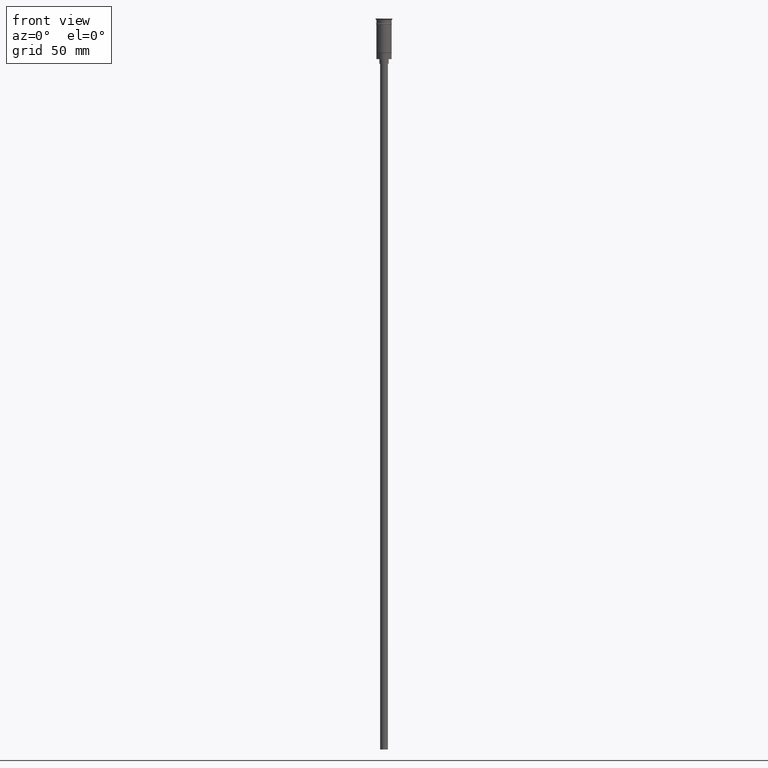
[diagram: clean part render]
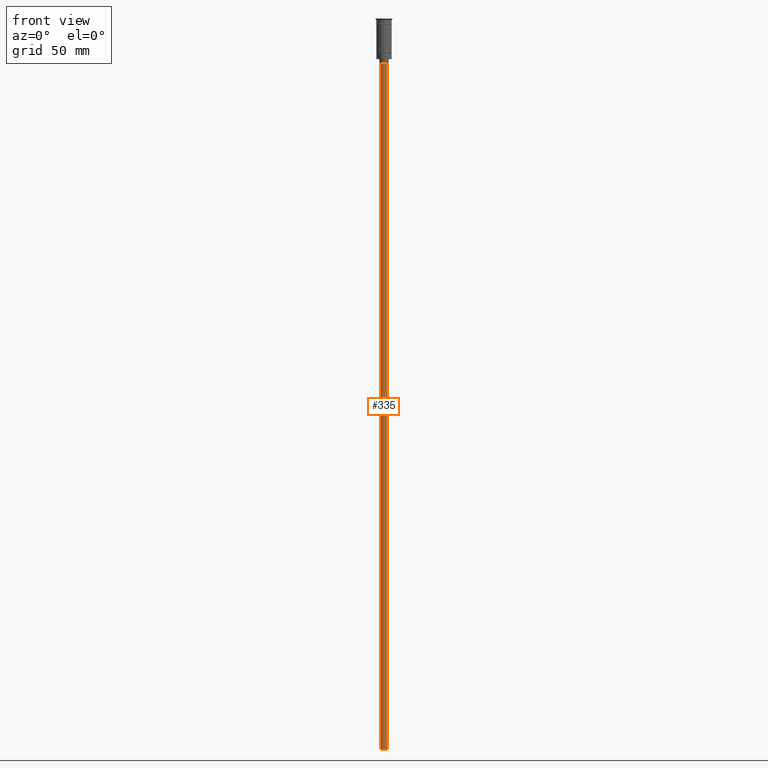
[diagram: same view with one face highlighted and labeled with its STEP entity id]
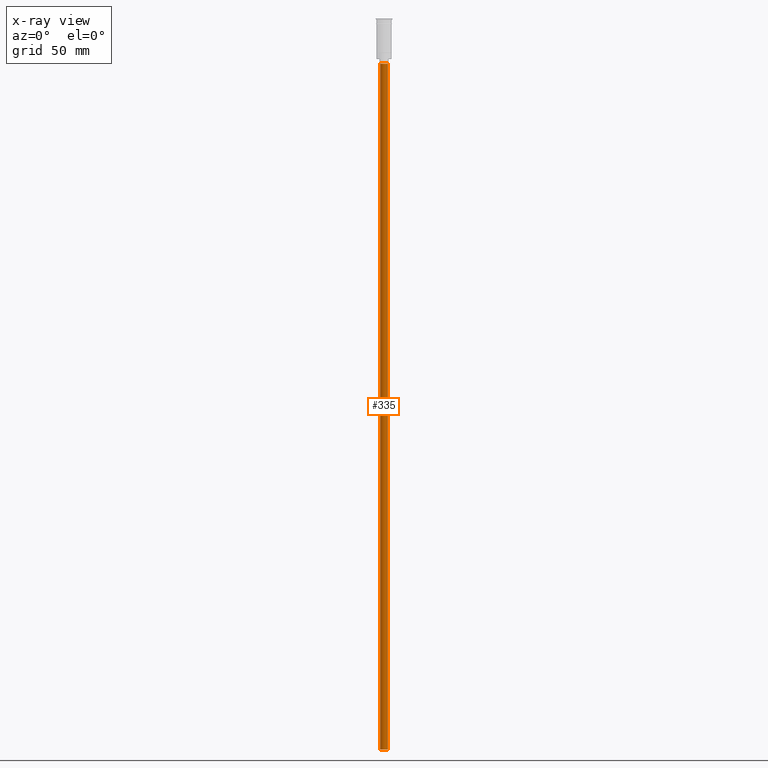
[diagram: x-ray of the same camera — body ghosted, the highlighted face saturated]
A machine part, front view. The second image highlights one B-rep face of the part: STEP entity #335.
The next image is the same camera in x-ray: the body ghosted, the highlighted face saturated — about 0% of this face is hidden behind the body in this view.
In plain terms, the highlighted cylindrical surface (edge-blend (fillet) strip) has radius 2.5 mm, axis along (-0, -0, 1).
Its self-contained STEP definition (entity closure, byte-faithful):
#17 = EDGE_CURVE ( 'NONE', #1533, #547, #1561, .T. ) ;
#209 = AXIS2_PLACEMENT_3D ( 'NONE', #705, #1601, #1447 ) ;
#266 = VERTEX_POINT ( 'NONE', #951 ) ;
#320 = CARTESIAN_POINT ( 'NONE',  ( 0.000000000000000000, 0.000000000000000000, -476.5000000000000568 ) ) ;
#335 = ADVANCED_FACE ( 'NONE', ( #944 ), #581, .T. ) ;
#336 = VECTOR ( 'NONE', #1487, 1000.000000000000000 ) ;
#395 = CARTESIAN_POINT ( 'NONE',  ( 2.500000000000000000, 0.000000000000000000, -476.5000000000000568 ) ) ;
#439 = CARTESIAN_POINT ( 'NONE',  ( 2.500000000000000000, 0.000000000000000000, -476.5000000000000568 ) ) ;
#547 = VERTEX_POINT ( 'NONE', #1192 ) ;
#581 = CYLINDRICAL_SURFACE ( 'NONE', #209, 2.500000000000000000 ) ;
#611 = VECTOR ( 'NONE', #617, 1000.000000000000000 ) ;
#617 = DIRECTION ( 'NONE',  ( -0.000000000000000000, -0.000000000000000000, 1.000000000000000000 ) ) ;
#673 = EDGE_CURVE ( 'NONE', #547, #952, #1565, .T. ) ;
#705 = CARTESIAN_POINT ( 'NONE',  ( 0.000000000000000000, 0.000000000000000000, -476.5000000000000568 ) ) ;
#748 = LINE ( 'NONE', #754, #611 ) ;
#754 = CARTESIAN_POINT ( 'NONE',  ( -2.500000000000000000, 3.061616997868383141E-16, -476.5000000000000568 ) ) ;
#798 = ORIENTED_EDGE ( 'NONE', *, *, #17, .T. ) ;
#846 = CARTESIAN_POINT ( 'NONE',  ( 0.000000000000000000, 0.000000000000000000, -29.50000000000000000 ) ) ;
#857 = AXIS2_PLACEMENT_3D ( 'NONE', #846, #972, #1366 ) ;
#862 = ORIENTED_EDGE ( 'NONE', *, *, #1395, .F. ) ;
#944 = FACE_OUTER_BOUND ( 'NONE', #993, .T. ) ;
#951 = CARTESIAN_POINT ( 'NONE',  ( -2.500000000000000000, 3.061616997868383141E-16, -476.5000000000000568 ) ) ;
#952 = VERTEX_POINT ( 'NONE', #1323 ) ;
#972 = DIRECTION ( 'NONE',  ( 0.000000000000000000, 0.000000000000000000, -1.000000000000000000 ) ) ;
#993 = EDGE_LOOP ( 'NONE', ( #862, #1190, #798, #1448 ) ) ;
#1004 = EDGE_CURVE ( 'NONE', #1533, #266, #1504, .T. ) ;
#1007 = AXIS2_PLACEMENT_3D ( 'NONE', #320, #1169, #1158 ) ;
#1158 = DIRECTION ( 'NONE',  ( -1.000000000000000000, 0.000000000000000000, 0.000000000000000000 ) ) ;
#1169 = DIRECTION ( 'NONE',  ( 0.000000000000000000, 0.000000000000000000, -1.000000000000000000 ) ) ;
#1190 = ORIENTED_EDGE ( 'NONE', *, *, #1004, .F. ) ;
#1192 = CARTESIAN_POINT ( 'NONE',  ( 2.500000000000000000, 0.000000000000000000, -29.50000000000000000 ) ) ;
#1323 = CARTESIAN_POINT ( 'NONE',  ( -2.500000000000000000, 3.061616997868383141E-16, -29.50000000000000000 ) ) ;
#1366 = DIRECTION ( 'NONE',  ( -1.000000000000000000, 0.000000000000000000, 0.000000000000000000 ) ) ;
#1395 = EDGE_CURVE ( 'NONE', #266, #952, #748, .T. ) ;
#1447 = DIRECTION ( 'NONE',  ( 1.000000000000000000, 0.000000000000000000, 0.000000000000000000 ) ) ;
#1448 = ORIENTED_EDGE ( 'NONE', *, *, #673, .T. ) ;
#1487 = DIRECTION ( 'NONE',  ( -0.000000000000000000, -0.000000000000000000, 1.000000000000000000 ) ) ;
#1504 = CIRCLE ( 'NONE', #1007, 2.500000000000000000 ) ;
#1533 = VERTEX_POINT ( 'NONE', #395 ) ;
#1561 = LINE ( 'NONE', #439, #336 ) ;
#1565 = CIRCLE ( 'NONE', #857, 2.500000000000000000 ) ;
#1601 = DIRECTION ( 'NONE',  ( -0.000000000000000000, -0.000000000000000000, 1.000000000000000000 ) ) ;